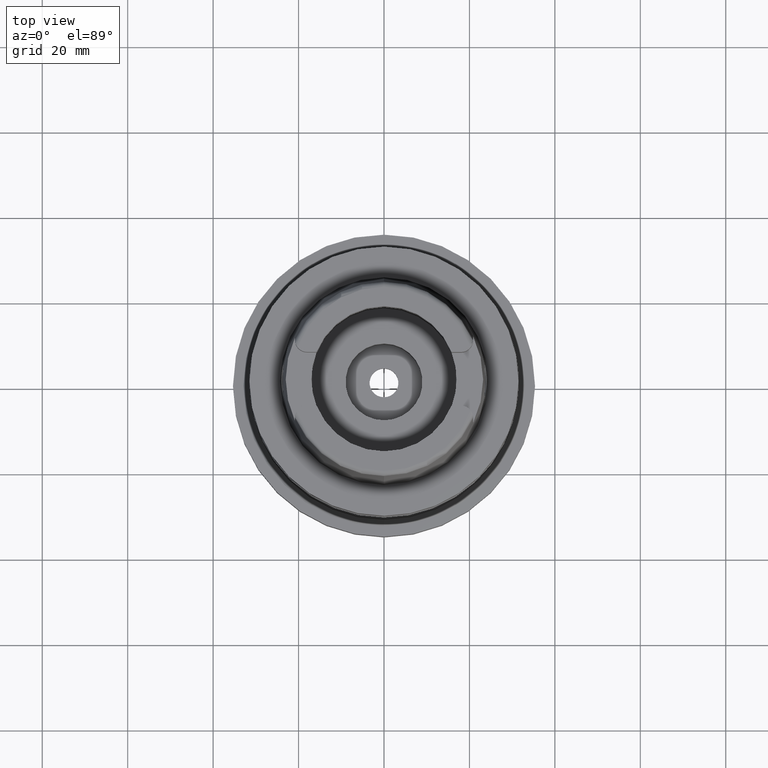
[diagram: clean part render]
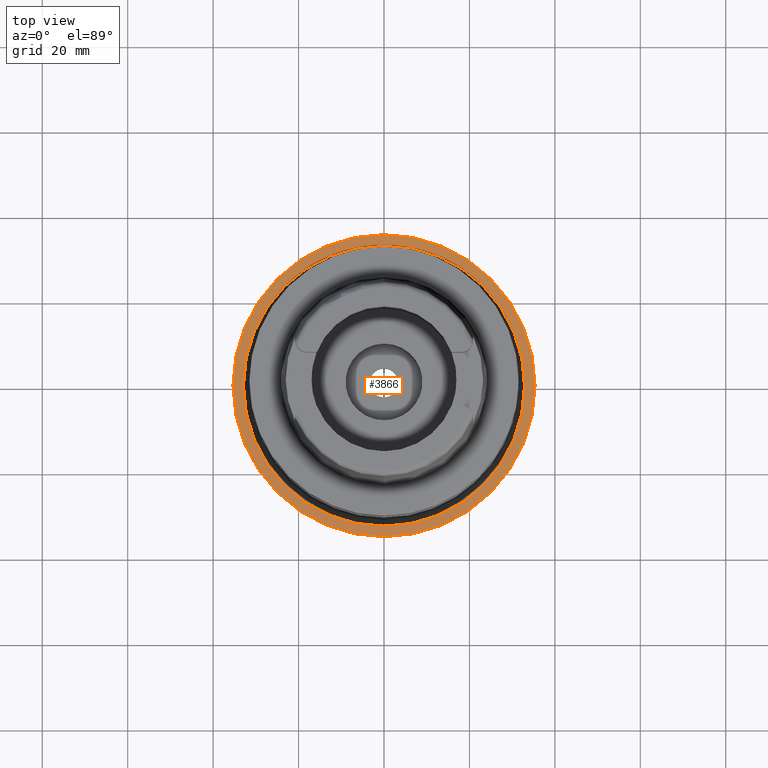
[diagram: same view with one face highlighted and labeled with its STEP entity id]
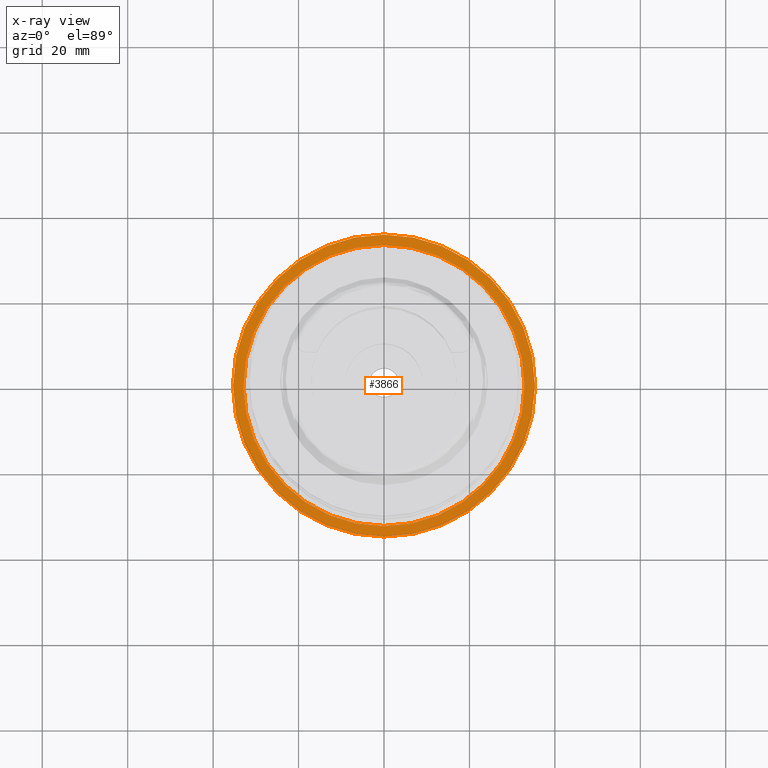
[diagram: x-ray of the same camera — body ghosted, the highlighted face saturated]
A machine part, top view. The second image highlights one B-rep face of the part: STEP entity #3866.
The next image is the same camera in x-ray: the body ghosted, the highlighted face saturated — about 0% of this face is hidden behind the body in this view.
In plain terms, the highlighted planar face has unit normal (0, 0, 1).
Its self-contained STEP definition (entity closure, byte-faithful):
#1717=CARTESIAN_POINT('',(0.E0,0.E0,-5.98E1));
#1718=DIRECTION('',(0.E0,0.E0,-1.E0));
#1719=DIRECTION('',(0.E0,-1.E0,0.E0));
#1720=AXIS2_PLACEMENT_3D('',#1717,#1718,#1719);
#1725=CARTESIAN_POINT('',(0.E0,0.E0,-5.98E1));
#1726=DIRECTION('',(0.E0,0.E0,-1.E0));
#1727=DIRECTION('',(0.E0,1.E0,0.E0));
#1728=AXIS2_PLACEMENT_3D('',#1725,#1726,#1727);
#1733=CARTESIAN_POINT('',(0.E0,0.E0,-5.98E1));
#1734=DIRECTION('',(0.E0,0.E0,1.E0));
#1735=DIRECTION('',(0.E0,-1.E0,0.E0));
#1736=AXIS2_PLACEMENT_3D('',#1733,#1734,#1735);
#1741=CARTESIAN_POINT('',(0.E0,0.E0,-5.98E1));
#1742=DIRECTION('',(0.E0,0.E0,1.E0));
#1743=DIRECTION('',(0.E0,1.E0,0.E0));
#1744=AXIS2_PLACEMENT_3D('',#1741,#1742,#1743);
#2518=CARTESIAN_POINT('',(0.E0,3.535E1,-5.98E1));
#2519=VERTEX_POINT('',#2518);
#2520=CARTESIAN_POINT('',(0.E0,-3.535E1,-5.98E1));
#2521=VERTEX_POINT('',#2520);
#2522=CARTESIAN_POINT('',(0.E0,-3.29E1,-5.98E1));
#2523=CARTESIAN_POINT('',(0.E0,3.29E1,-5.98E1));
#2524=VERTEX_POINT('',#2522);
#2525=VERTEX_POINT('',#2523);
#3851=CARTESIAN_POINT('',(0.E0,0.E0,-5.98E1));
#3852=DIRECTION('',(0.E0,0.E0,1.E0));
#3853=DIRECTION('',(0.E0,1.E0,0.E0));
#3854=AXIS2_PLACEMENT_3D('',#3851,#3852,#3853);
#3855=PLANE('',#3854);
#3857=ORIENTED_EDGE('',*,*,#3856,.T.);
#3859=ORIENTED_EDGE('',*,*,#3858,.T.);
#3860=EDGE_LOOP('',(#3857,#3859));
#3861=FACE_OUTER_BOUND('',#3860,.F.);
#3862=ORIENTED_EDGE('',*,*,#3830,.T.);
#3863=ORIENTED_EDGE('',*,*,#3846,.T.);
#3864=EDGE_LOOP('',(#3862,#3863));
#3865=FACE_BOUND('',#3864,.F.);
#1721=CIRCLE('',#1720,3.535E1);
#1729=CIRCLE('',#1728,3.535E1);
#1737=CIRCLE('',#1736,3.29E1);
#1745=CIRCLE('',#1744,3.29E1);
#3830=EDGE_CURVE('',#2524,#2525,#1737,.T.);
#3846=EDGE_CURVE('',#2525,#2524,#1745,.T.);
#3856=EDGE_CURVE('',#2521,#2519,#1721,.T.);
#3858=EDGE_CURVE('',#2519,#2521,#1729,.T.);
#3866=ADVANCED_FACE('',(#3861,#3865),#3855,.T.);